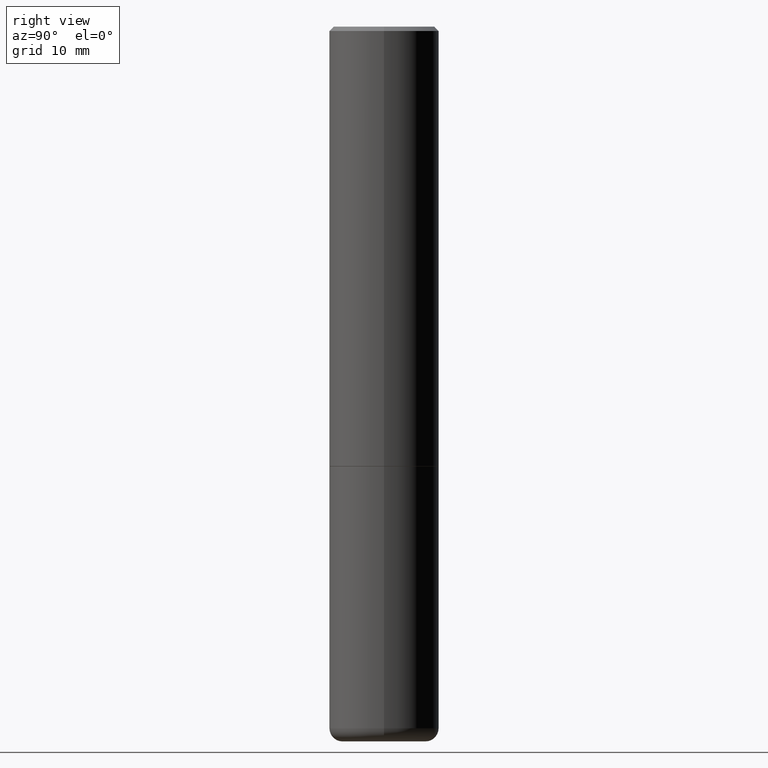
[diagram: clean part render]
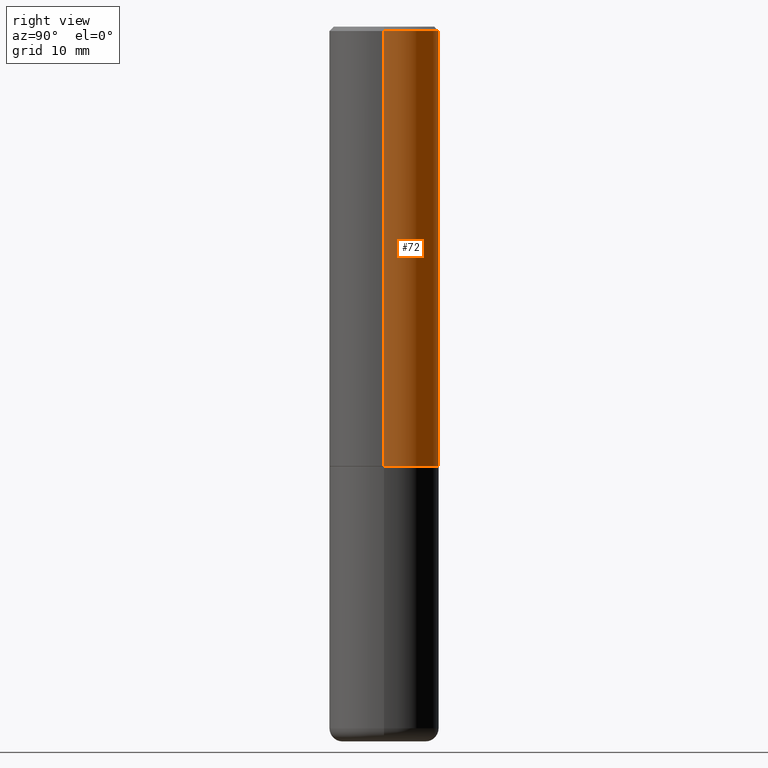
[diagram: same view with one face highlighted and labeled with its STEP entity id]
A machine part, right view. The second image highlights one B-rep face of the part: STEP entity #72.
In plain terms, the highlighted cylindrical surface (partial cylindrical patch) has radius 6.35 mm, axis along (-0, 0, 1).
Its self-contained STEP definition (entity closure, byte-faithful):
#18 = ORIENTED_EDGE ( 'NONE', *, *, #312, .F. ) ;
#24 = DIRECTION ( 'NONE',  ( 1.000000000000000000, -6.982962677686266711E-15, 4.876176775795935232E-29 ) ) ;
#47 = CIRCLE ( 'NONE', #314, 0.2499999999999994171 ) ;
#53 = VECTOR ( 'NONE', #183, 39.37007874015748143 ) ;
#62 = CARTESIAN_POINT ( 'NONE',  ( -0.2499999999999994171, 1.675911042644699238E-15, -0.02000000000000013226 ) ) ;
#70 = CARTESIAN_POINT ( 'NONE',  ( 4.890937612370304688E-31, -6.982962677686337215E-17, -0.02000000000000013226 ) ) ;
#72 = ADVANCED_FACE ( 'NONE', ( #292 ), #485, .T. ) ;
#73 = DIRECTION ( 'NONE',  ( -2.445468806185136597E-29, 3.491481338843145583E-15, 1.000000000000000000 ) ) ;
#81 = CARTESIAN_POINT ( 'NONE',  ( 4.888492143564087591E-29, -6.979471196347447369E-15, -1.998999999999999888 ) ) ;
#108 = CARTESIAN_POINT ( 'NONE',  ( -0.2499999999999996114, -1.748293572161906447E-15, -1.998999999999999888 ) ) ;
#115 = CARTESIAN_POINT ( 'NONE',  ( 0.2499999999999994171, -1.784954126219742244E-15, -0.02000000000000013226 ) ) ;
#138 = DIRECTION ( 'NONE',  ( -2.445468806185136877E-29, 3.491481338843145188E-15, 1.000000000000000000 ) ) ;
#145 = CARTESIAN_POINT ( 'NONE',  ( 0.000000000000000000, 0.000000000000000000, 0.000000000000000000 ) ) ;
#183 = DIRECTION ( 'NONE',  ( -2.445468806185136877E-29, 3.491481338843145188E-15, 1.000000000000000000 ) ) ;
#203 = ORIENTED_EDGE ( 'NONE', *, *, #211, .F. ) ;
#211 = EDGE_CURVE ( 'NONE', #429, #352, #406, .T. ) ;
#247 = EDGE_LOOP ( 'NONE', ( #399, #316, #18, #203 ) ) ;
#258 = CARTESIAN_POINT ( 'NONE',  ( 0.2499999999999995282, -1.745740669421563325E-15, 1.219044193948981566E-29 ) ) ;
#265 = DIRECTION ( 'NONE',  ( 1.000000000000000000, -6.982962677686266711E-15, 0.000000000000000000 ) ) ;
#276 = VERTEX_POINT ( 'NONE', #62 ) ;
#292 = FACE_OUTER_BOUND ( 'NONE', #247, .T. ) ;
#293 = DIRECTION ( 'NONE',  ( 1.000000000000000000, -6.982962677686264344E-15, 0.000000000000000000 ) ) ;
#296 = LINE ( 'NONE', #419, #53 ) ;
#306 = CIRCLE ( 'NONE', #320, 0.2499999999999996669 ) ;
#312 = EDGE_CURVE ( 'NONE', #352, #276, #47, .T. ) ;
#314 = AXIS2_PLACEMENT_3D ( 'NONE', #70, #491, #265 ) ;
#316 = ORIENTED_EDGE ( 'NONE', *, *, #327, .T. ) ;
#320 = AXIS2_PLACEMENT_3D ( 'NONE', #81, #73, #293 ) ;
#327 = EDGE_CURVE ( 'NONE', #347, #276, #296, .T. ) ;
#330 = EDGE_CURVE ( 'NONE', #429, #347, #306, .T. ) ;
#347 = VERTEX_POINT ( 'NONE', #108 ) ;
#352 = VERTEX_POINT ( 'NONE', #115 ) ;
#357 = AXIS2_PLACEMENT_3D ( 'NONE', #145, #363, #24 ) ;
#363 = DIRECTION ( 'NONE',  ( -2.445468806185136597E-29, 3.491481338843145583E-15, 1.000000000000000000 ) ) ;
#399 = ORIENTED_EDGE ( 'NONE', *, *, #330, .T. ) ;
#406 = LINE ( 'NONE', #258, #423 ) ;
#419 = CARTESIAN_POINT ( 'NONE',  ( -0.2499999999999995282, 1.776356839400247112E-15, -1.229733772563724063E-29 ) ) ;
#423 = VECTOR ( 'NONE', #138, 39.37007874015748143 ) ;
#429 = VERTEX_POINT ( 'NONE', #489 ) ;
#485 = CYLINDRICAL_SURFACE ( 'NONE', #357, 0.2499999999999995282 ) ;
#489 = CARTESIAN_POINT ( 'NONE',  ( 0.2499999999999996669, -8.725211865769010891E-15, -1.998999999999999888 ) ) ;
#491 = DIRECTION ( 'NONE',  ( -2.445468806185136597E-29, 3.491481338843145583E-15, 1.000000000000000000 ) ) ;